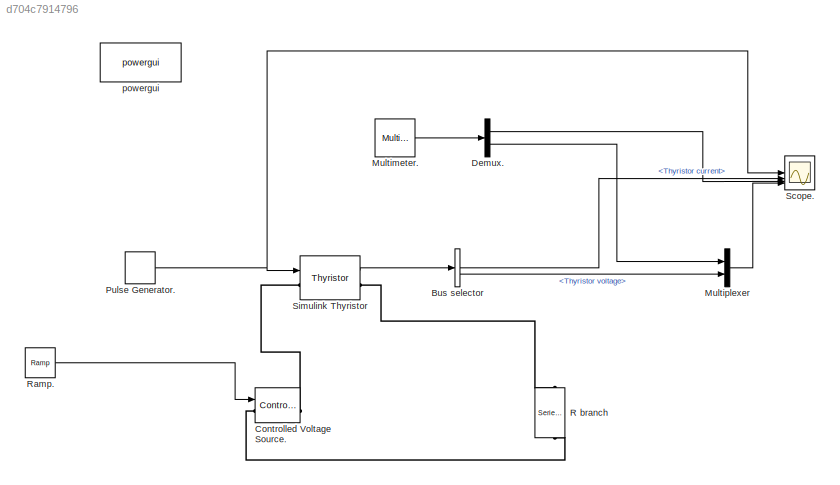
MODEL slx_d704c7914796
KIND model
CONFIG AbsTol = auto
CONFIG EnableMultiTasking = off
CONFIG FixedStep = auto
CONFIG MaxStep = auto
CONFIG MinStep = auto
CONFIG RelTol = 1e-3
CONFIG SampleTimeConstraint = Unconstrained
CONFIG SolverName = VariableStepAuto
CONFIG StartTime = 0.0
CONFIG StopTime = 10.0
BLOCK [BusSelector] Bus selector
  OutputSignals = Thyristor current,Thyristor voltage
BLOCK [Reference] Controlled Voltage Source.  REF=spsControlledVoltageSourceLib/Controlled Voltage Source
  LibrarySourceBlock = sps_lib/Sources/Controlled Voltage Source
  NameLocation = left
  SourceBlock = spsControlledVoltageSourceLib/Controlled Voltage Source
  SourceType = Controlled Voltage Source
BLOCK [Demux] Demux.
  Outputs = 2
BLOCK [Reference] Multimeter.  REF=spsMultimeterLib/Multimeter
  LibrarySourceBlock = sps_lib/Sensors and Measurements/Multimeter
  SourceBlock = spsMultimeterLib/Multimeter
  SourceType = Multimeter
BLOCK [Mux] Multiplexer
  DisplayOption = bar
  Inputs = 2
BLOCK [DiscretePulseGenerator] Pulse Generator.
  Period = 1
  PulseType = Time based
  PulseWidth = 50
BLOCK [Reference] R branch  REF=spsSeriesRLCBranchLib/Series RLC Branch
  LibrarySourceBlock = sps_lib/Passives/Series RLC Branch
  NameLocation = left
  SourceBlock = spsSeriesRLCBranchLib/Series RLC Branch
  SourceType = Series RLC Branch
BLOCK [Reference] Ramp.  REF=simulink/Sources/Ramp
  SourceBlock = simulink/Sources/Ramp
  SourceType = Ramp
BLOCK [Scope] Scope.
  ActiveDisplayYMaximum = 1.125
  ActiveDisplayYMinimum = -0.12499999999999997
  ContainerLayout = {"WindowBounds":[120,66,1294,806]}
  DisplayFullPath = on
  Floating = off
  GraphicalSettings = {"Style":{"BackgroundColor":[0.12941176470588237,0.12941176470588237,0.12941176470588237],"AxesColor":[0.07058823529411765,0.07058823529411765,0.07058823529411765],"LabelsColor":[0.8509803921568627,0.8509803921568627,0.8509803921568627],"PreserveColors":true,"Visible":[true,true,true,true,true],"LineStyle":["-","-","-","-","-"],"LineWidth":[1.5,1.5,1.5,1.5,1.5],"BarWidth":[0.9,0.9,0.9,0.9,0.9],"Li...<+4011ch>
  LayoutDimensionsString = [2,2]
  MultipleDisplayCache = [{"MaxYLimMag":1.125,"MaxYLimReal":1.125,"MinYLimMag":0,"MinYLimReal":-0.12499999999999997,"PlotAsMagnitudePhase":false,"ShowGrid":true,"ShowLegend":true,"Title":"%<SignalLabel>","YLabel":""},{"MaxYLimMag":10.339660339379652,"MaxYLimReal":10.339660339379652,"MinYLimMag":0,"MinYLimReal":-1.1488511488199611,"PlotAsMagnitudePhase":false,"ShowGrid":true,"ShowLegend":true,"Title":"%<SignalLabel>","YLab...<+412ch>
  NumInputPorts = 4
  OpenAtSimulationStart = on
  ScopeFrameLocation = container
  ShowLegend = on
  ShowTimeAxisLabel = on
  Visible = on
  WasSavedAsWebScope = on
  WindowPosition = [128.000000,96.000000,1280.000000,768.000000,]
BLOCK [Reference] Simulink Thyristor  REF=spsThyristorLib/Thyristor
  LibrarySourceBlock = sps_lib/Power Electronics/Thyristor
  SourceBlock = spsThyristorLib/Thyristor
  SourceType = Thyristor
BLOCK [Reference] powergui  REF=sps_lib/powergui
  LibrarySourceBlock = sps_lib/powergui
  Priority = 1
  SourceBlock = sps_lib/powergui
  SourceType = PSB option menu block
LINE Bus selector:1 -> Scope.:2
LINE Bus selector:2 -> Multiplexer:2
LINE Demux.:1 -> Scope.:3
LINE Demux.:2 -> Multiplexer:1
LINE Multimeter.:1 -> Demux.:1
LINE Multiplexer:1 -> Scope.:4
NET Pulse Generator.:1 -> Scope.:1, Simulink Thyristor:1
LINE Ramp.:1 -> Controlled Voltage Source.:1
LINE Simulink Thyristor:1 -> Bus selector:1
PLINE Controlled Voltage Source.:LConn1 -- R branch:RConn1
PLINE Controlled Voltage Source.:RConn1 -- Simulink Thyristor:LConn1
PLINE R branch:LConn1 -- Simulink Thyristor:RConn1
note: NET lines group one-source signal fan-out (src -> all destinations, sorted); 1:1 wires keep LINE
